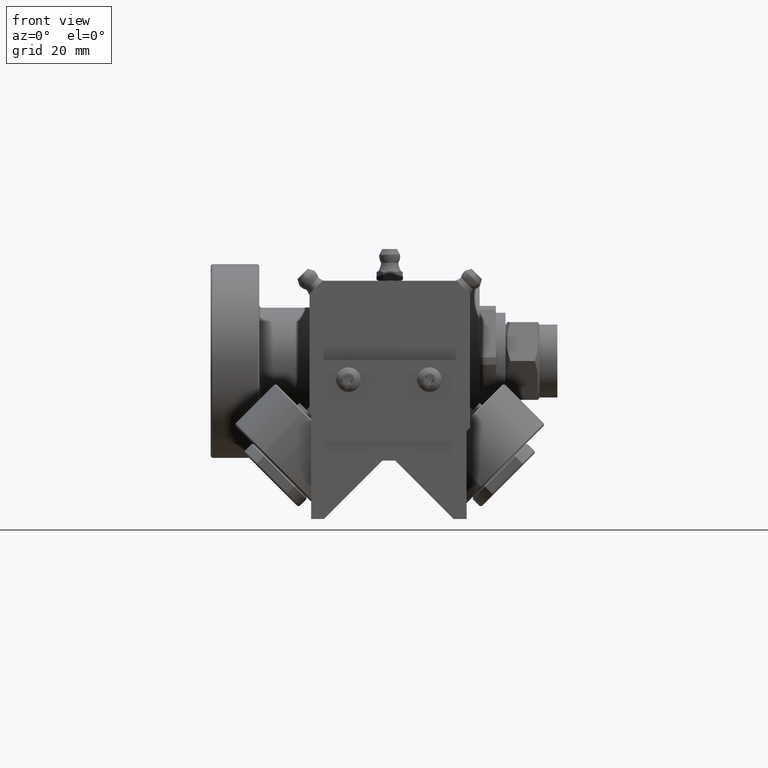
[diagram: clean part render]
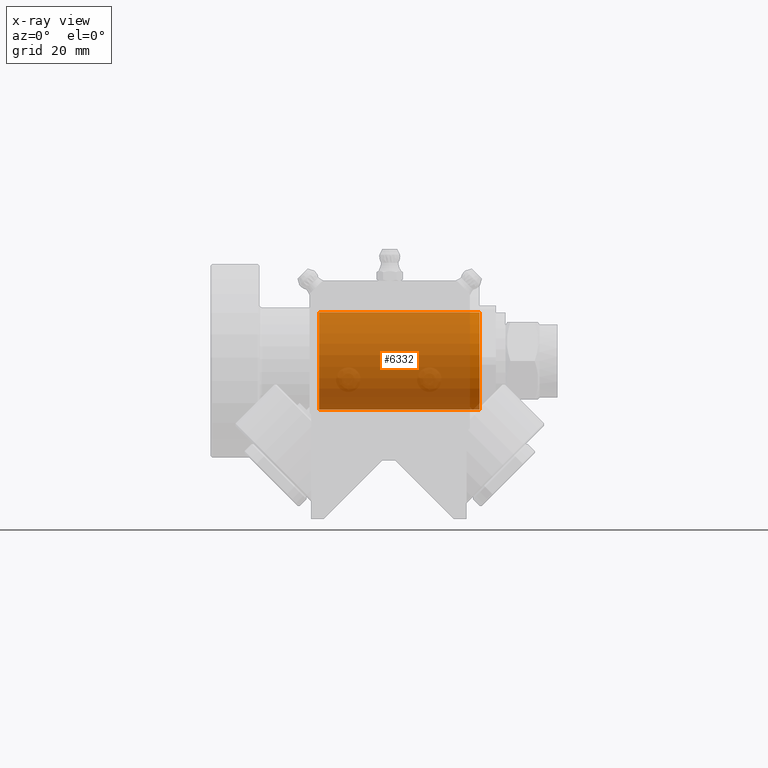
[diagram: x-ray — body ghosted, one internal face saturated and labeled with its STEP entity id]
A machine part, front view, then the same camera in x-ray: the body is ghosted and one INTERNAL B-rep face — a face not visible from any outside direction — is saturated and labeled: STEP entity #6332.
In plain terms, the highlighted cylindrical surface (bore or boss wall) has radius 15 mm, axis along (1, -0, -0).
Its self-contained STEP definition (entity closure, byte-faithful):
#855=FACE_OUTER_BOUND('',#1262,.T.);
#1262=EDGE_LOOP('',(#5335,#5336,#5337,#5338));
#1667=CIRCLE('',#7370,15.);
#1668=CIRCLE('',#7372,15.);
#2100=LINE('',#12697,#2471);
#2471=VECTOR('',#8811,15.);
#3045=VERTEX_POINT('',#12691);
#3046=VERTEX_POINT('',#12695);
#3848=EDGE_CURVE('',#3045,#3045,#1667,.T.);
#3849=EDGE_CURVE('',#3046,#3046,#1668,.T.);
#3850=EDGE_CURVE('',#3046,#3045,#2100,.T.);
#5335=ORIENTED_EDGE('',*,*,#3849,.F.);
#5336=ORIENTED_EDGE('',*,*,#3850,.T.);
#5337=ORIENTED_EDGE('',*,*,#3848,.F.);
#5338=ORIENTED_EDGE('',*,*,#3850,.F.);
#6095=CYLINDRICAL_SURFACE('',#7371,15.);
#6332=ADVANCED_FACE('',(#855),#6095,.T.);
#7370=AXIS2_PLACEMENT_3D('',#12693,#8805,#8806);
#7371=AXIS2_PLACEMENT_3D('',#12694,#8807,#8808);
#7372=AXIS2_PLACEMENT_3D('',#12696,#8809,#8810);
#8805=DIRECTION('center_axis',(-1.,0.,0.));
#8806=DIRECTION('ref_axis',(0.,-1.,0.));
#8807=DIRECTION('center_axis',(1.,0.,0.));
#8808=DIRECTION('ref_axis',(0.,-1.,0.));
#8809=DIRECTION('center_axis',(1.,0.,0.));
#8810=DIRECTION('ref_axis',(0.,-1.,0.));
#8811=DIRECTION('',(-1.,0.,0.));
#12691=CARTESIAN_POINT('',(-24.5,15.,-1.83697019872103E-15));
#12693=CARTESIAN_POINT('Origin',(-24.5,0.,0.));
#12694=CARTESIAN_POINT('Origin',(0.,0.,0.));
#12695=CARTESIAN_POINT('',(25.,15.,1.83697019872103E-15));
#12696=CARTESIAN_POINT('Origin',(25.,0.,0.));
#12697=CARTESIAN_POINT('',(0.,15.,1.83697019872103E-15));